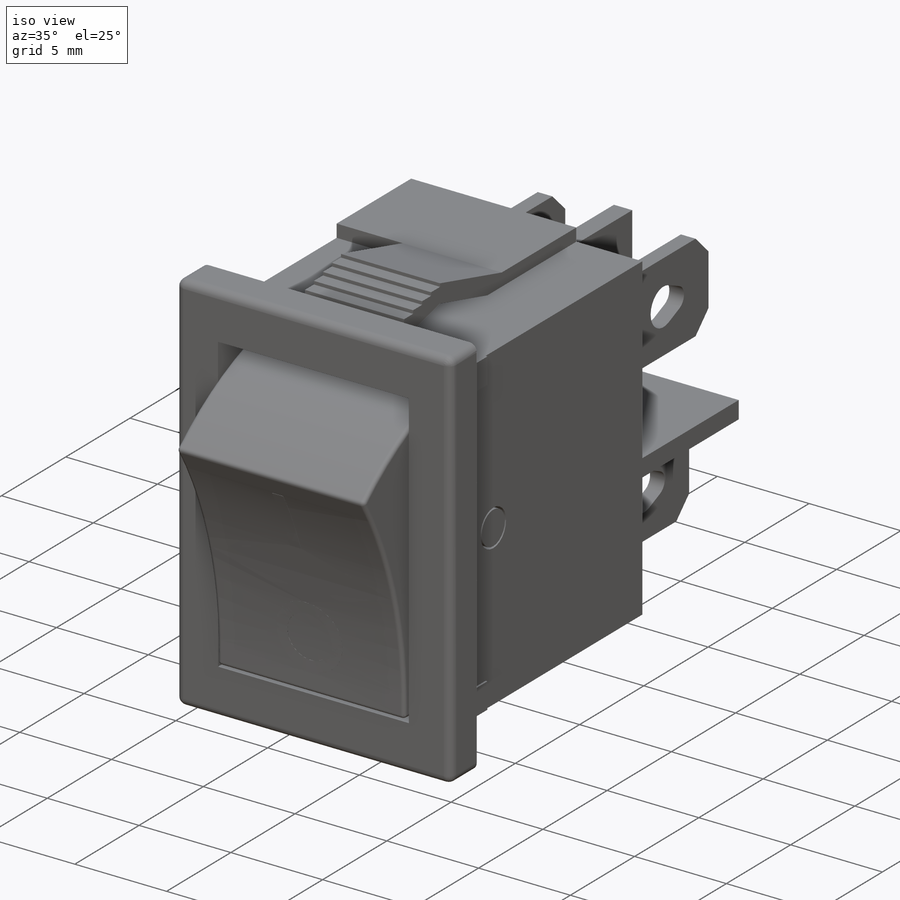
[diagram: iso view]
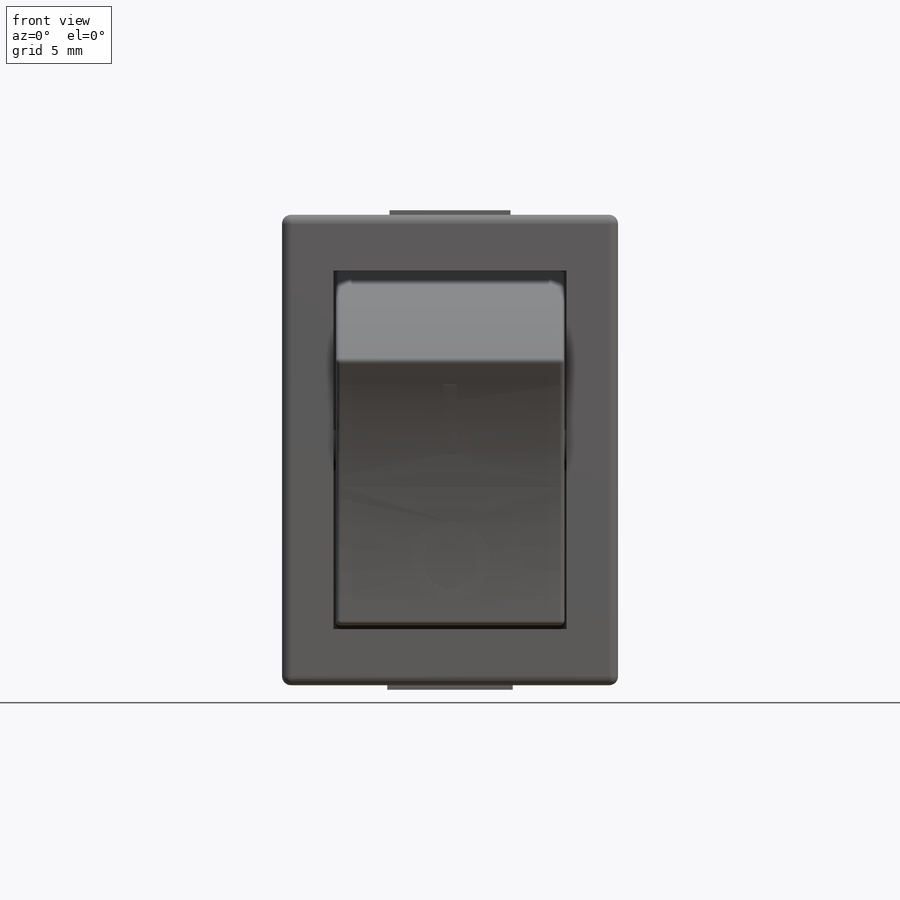
[diagram: front view]
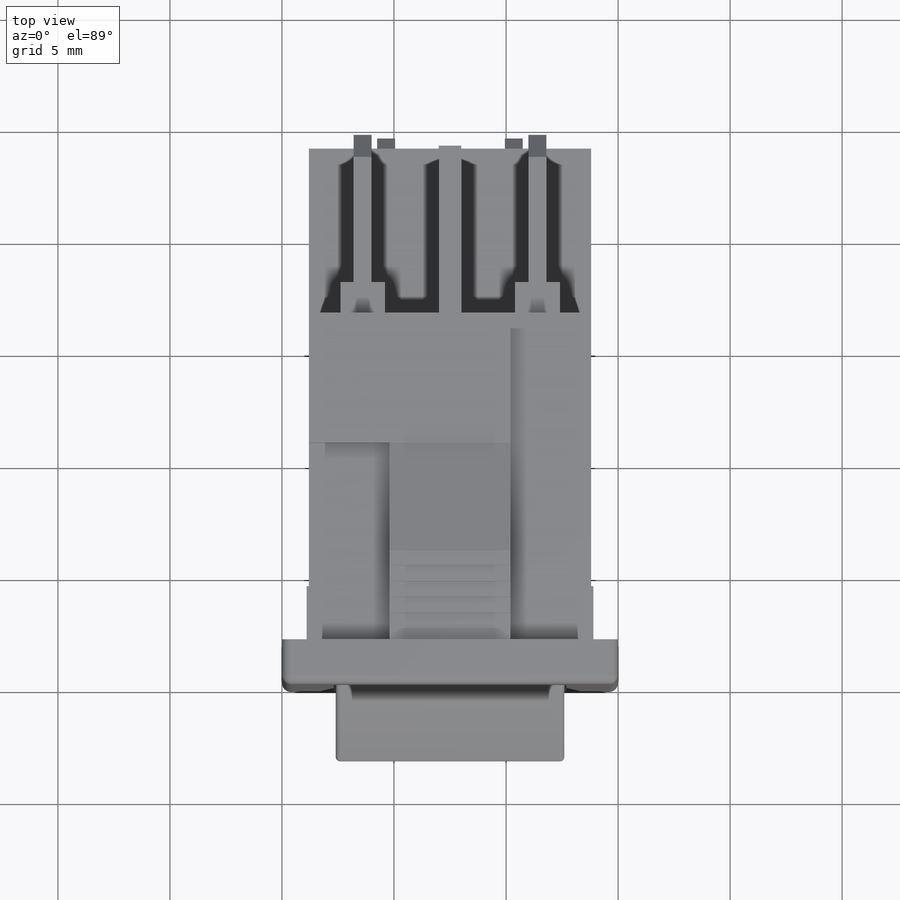
[diagram: top view]
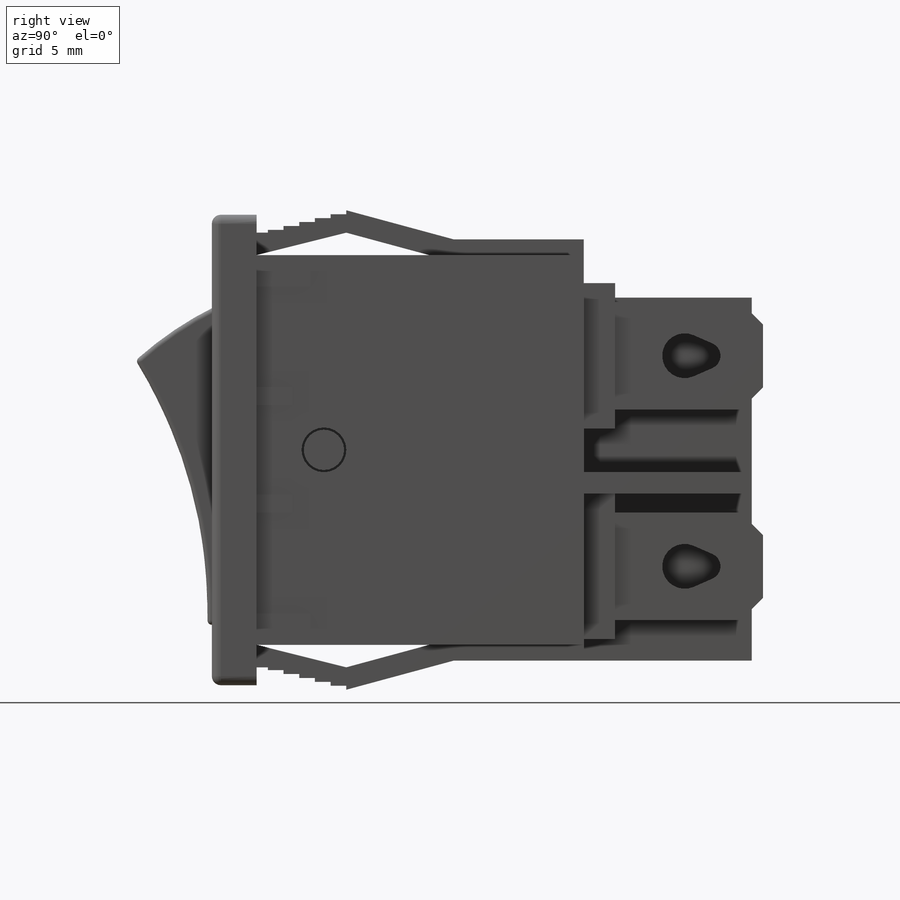
[diagram: right view]
SOLIDWORKS PART (.sldprt)
format: sldprt  version: not decoded by parser v0  size: 1,374,720 bytes
history: native  units: mm
features: sketch x20, cut_extrude x10, extrude x9, plane x3, fillet x2, material x1, chamfer x1 (+8 scaffold rows collapsed)
feature tree (54):
  scaffold x8  (default folders/planes/origin — collapsed)
  material  "Материал <не указан>"
  plane  "Спереди"
  plane  "Сверху"
  plane  "Справа"
  sketch  "Эскиз1"  dims[c1.D1=21.0mm c1.D2=2.0mm c1.D3=4.0mm c1.D4=0.8mm c1.D5=16.6mm c1.D6=21.4mm c1.D7=18.0mm c1.D8=5.8mm c1.D9=0.7mm c1.D10=0.7mm c1.D11=0.7mm c1.D12=0.7mm c1.D13=0.7mm c2.D9=0.7mm c2.D14=18.8mm c2.D7=17.4mm c2.D15=~0.983443mm]
  extrude  "Вытянуть1"  Depth=15mm
  sketch  "Эскиз2"  dims[D1=5.4mm]
  cut_extrude  "Вытянуть2"  [1 undecoded]
  sketch  "Эскиз3"  dims[D1=5.6mm]
  cut_extrude  "Вытянуть3"  Depth=10mm
  sketch  "Эскиз4"  dims[D1=12.6mm]
  cut_extrude  "Вытянуть4"  [1 undecoded]
  fillet  "Скругление1"  Radius=0.4mm
  sketch  "Эскиз5"  dims[D1=2.4mm D2=1.4mm D3=4.5mm D4=1.6mm D5=0.8mm]
  extrude  "Вытянуть5"  Depth=0.1mm
  sketch  "Эскиз6"  dims[D1=2.4mm D2=1.4mm D3=4.5mm D4=1.6mm D5=0.8mm]
  extrude  "Вытянуть6"  Depth=0.1mm
  sketch  "Эскиз7"  dims[D1=10.4mm D2=5.2mm D3=16.0mm D4=8.0mm]
  cut_extrude  "Вытянуть7"  Depth=7mm
  sketch  "Эскиз8"  dims[D5=0.2mm D1=3.4mm D2=0.2mm D3=0.2mm D4=12.0mm]
  extrude  "Вытянуть8"  Depth=0.1mm
  fillet  "Скругление2"  Radius=0.2mm
  sketch  "Эскиз9"  dims[c1.D1=2.4mm c1.D2=3.6mm c1.D3=0.6mm c1.D4=0.3mm c1.D5=3.4mm c1.D6=0.5mm c1.D7=3.0mm c2.D1=0.01mm]
  sketch  "Эскиз10"  dims[D1=1.8mm D2=3.3mm D3=3.3mm D4=7.2mm]
  cut_extrude  "Вытянуть10"  Depth=0.1mm
  sketch  "Эскиз11"  dims[D1=2.9mm]
  extrude  "Вытянуть11"  Depth=0.1mm
  sketch  "Эскиз12"  dims[c1.D1=~1.827597mm c1.D2=2.0mm c2.D1=5.0mm]
  cut_extrude  "Вытянуть12"  Depth=1.1mm
  sketch  "Эскиз13"  dims[D1=2.0mm D2=5.0mm]
  cut_extrude  "Вытянуть13"  Depth=1.1mm
  sketch  "Эскиз14"  dims[D1=1.8mm]
  extrude  "Вытянуть14"  [1 undecoded]
  sketch  "Эскиз15"  dims[c1.D1=5.4mm c1.D2=5.4mm c1.D3=0.8mm c1.D4=~1.220954mm c2.D4=90.0deg c3.D4=0.8mm c3.D5=0.4mm c3.D6=2.7mm c3.D7=2.7mm c3.D8=6.0mm c3.D1=4.8mm c3.D2=0.8mm c3.D3=4.8mm c4.D4=0.8mm c4.D5=2.8mm c4.D6=2.0mm c4.D7=1.8mm c4.D8=3.3mm c5.D6=8.6mm c5.D8=6.5mm]
  extrude  "Вытянуть15"  Depth=8mm
  sketch  "Эскиз17"  dims[c1.D1=2.0mm c1.D3=1.2mm c1.D4=1.0mm c1.D5=2.0mm c1.D7=1.2mm c1.D8=1.0mm c1.D2=1.0mm c2.D4=3.5mm c2.D6=1.0mm c2.D8=3.5mm]
  cut_extrude  "Вытянуть17"  [1 undecoded]
  chamfer  "Фаска1"  Distance=1mm Angle=45deg
  sketch  "Эскиз18"  dims[D1=2.0mm D2=6.5mm D3=1.0mm D4=3.25mm D5=2.0mm D6=6.5mm D7=1.0mm D8=3.25mm]
  extrude  "Бобышка-Вытянуть1"  Depth=1.4mm
  sketch  "Эскиз19"  dims[D1=16.2mm D2=1.0mm D3=0.5mm D4=8.4mm D5=1.0mm D6=1.0mm]
  extrude  "Бобышка-Вытянуть2"  Depth=7.5mm
  sketch  "Эскиз20"
  cut_extrude  "Вырез-Вытянуть1"  Depth=8mm
  sketch  "Эскиз21"
  cut_extrude  "Вырез-Вытянуть2"  Depth=8mm
decode coverage: 36 of 42 modeling features carry decoded parameters
note: ~ marks probable driven/reference dimensions
note: 4 parameter values undecoded
summary: no parameter record found for 4 features
note: suppression state not decoded; provenance and decode notes live in map.json
